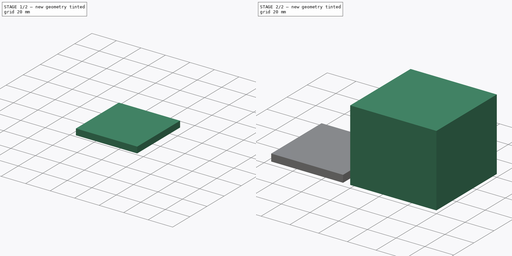
[diagram: build sequence overview — one tinted view per stage of 2, left to right]
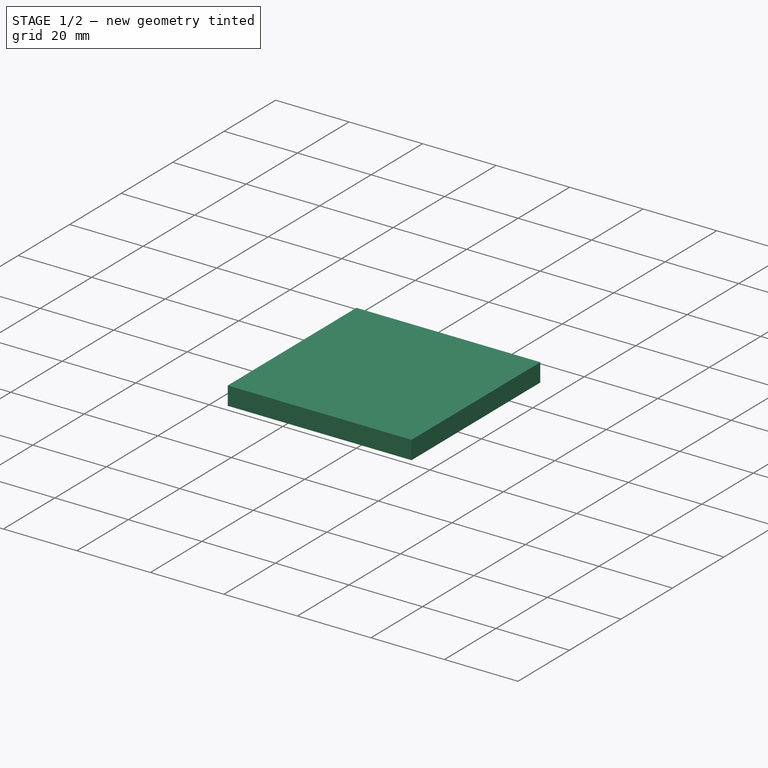
[diagram: stage 1 of 2 — iso view after this stage's code; geometry added in this stage tinted green]
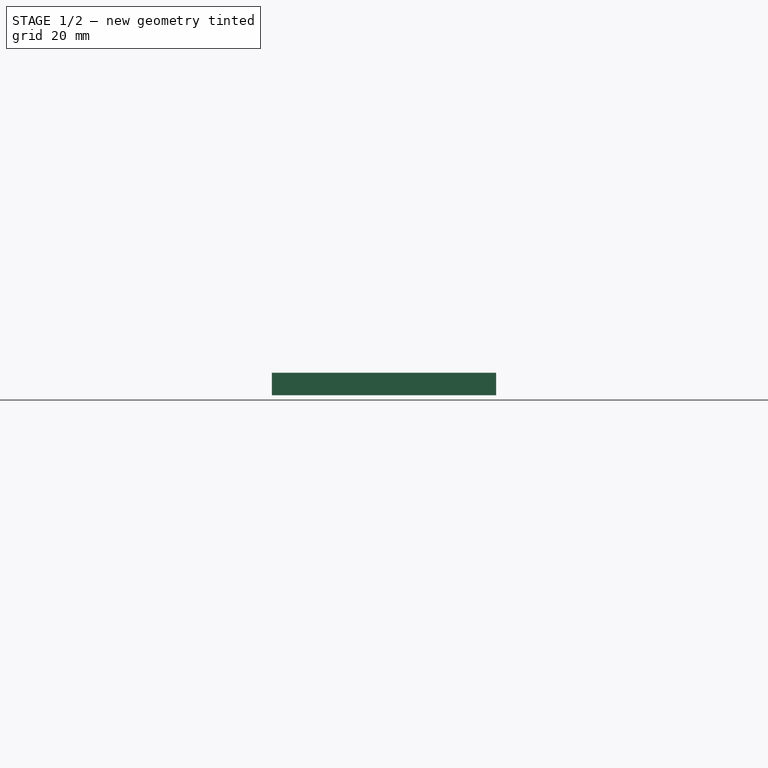
[diagram: stage 1 of 2 — front view after this stage's code; geometry added in this stage tinted green]
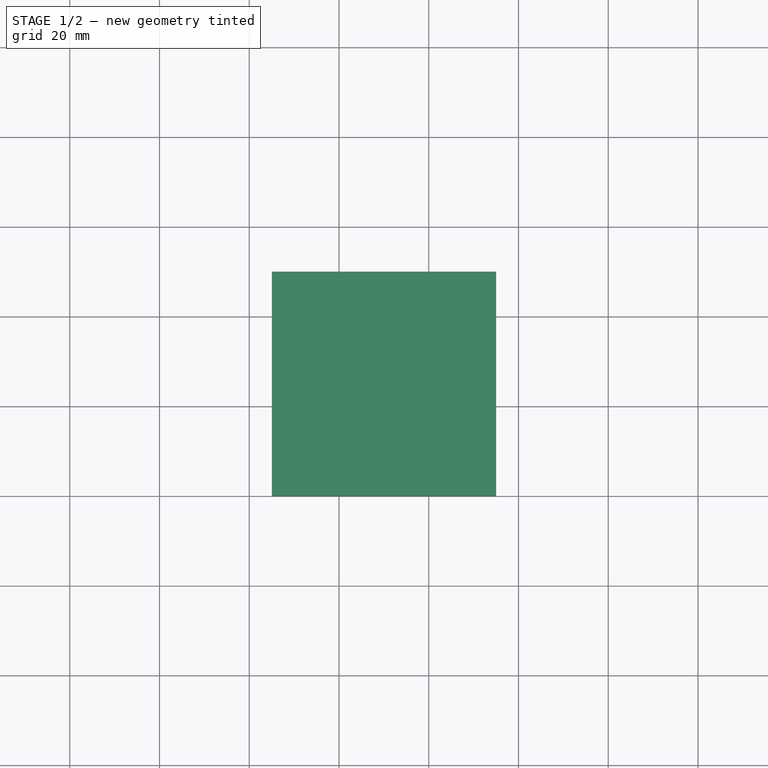
[diagram: stage 1 of 2 — top view after this stage's code; geometry added in this stage tinted green]
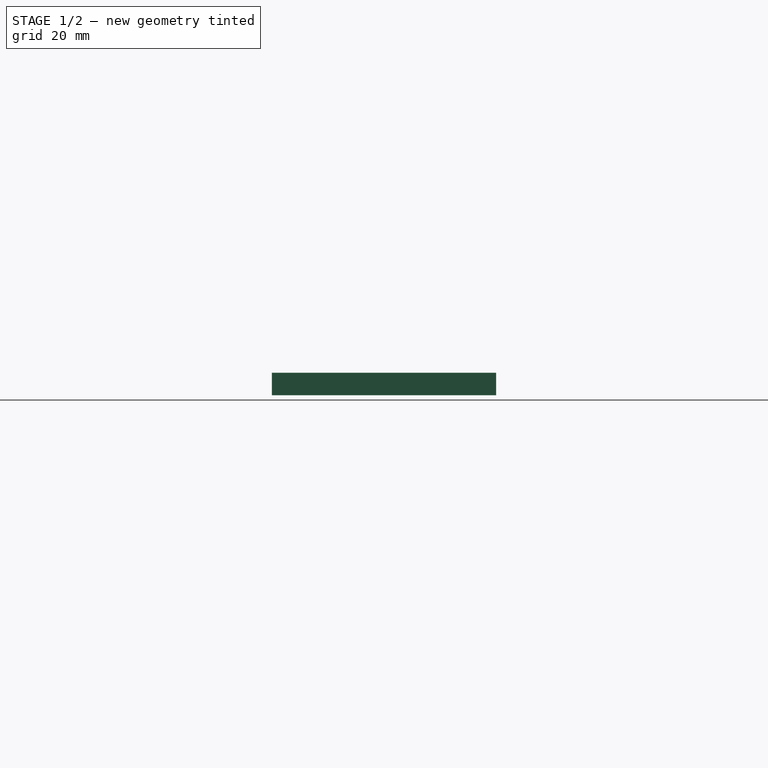
[diagram: stage 1 of 2 — right view after this stage's code; geometry added in this stage tinted green]
FCSTD DOCUMENT  (FreeCAD 0.18R16110 (Git))
Label: cad4
License: All rights reserved
LicenseURL: http://en.wikipedia.org/wiki/All_rights_reserved
objects: Sketcher::SketchObject×2, Part::Extrusion×2, Part::Box×1, Part::Cut×1, App::Part×1
note: 6 computed .brp shape members not serialized (recipe doc carries the construction recipe); baked Part::Feature solids carry a one-line shape summary decoded from their .brp

FEATURE [Sketcher::SketchObject] Sketch
  MapMode = 5
  Placement = pos=(0,0,45) rot=(0,0,1;0rad)
  sketch-geometry (27):
    g0: LineSegment StartX=5 StartY=55 StartZ=0 EndX=55 EndY=55 EndZ=0
    g1: LineSegment StartX=5 StartY=5 StartZ=0 EndX=55 EndY=5 EndZ=0
    g2: LineSegment StartX=5 StartY=55 StartZ=0 EndX=5 EndY=37.5 EndZ=0
    g3: LineSegment StartX=5 StartY=5 StartZ=0 EndX=5 EndY=22.5 EndZ=0
    g4: LineSegment StartX=5 StartY=22.5 StartZ=0 EndX=10 EndY=22.5 EndZ=0
    g5: LineSegment StartX=10 StartY=37.5 StartZ=0 EndX=5 EndY=37.5 EndZ=0
    g6: LineSegment StartX=55 StartY=55 StartZ=0 EndX=55 EndY=37.5 EndZ=0
    g7: LineSegment StartX=55 StartY=5 StartZ=0 EndX=55 EndY=22.5 EndZ=0
    g8: LineSegment StartX=55 StartY=37.5 StartZ=0 EndX=50 EndY=37.5 EndZ=0
    g9: LineSegment StartX=50 StartY=22.5 StartZ=0 EndX=55 EndY=22.5 EndZ=0
    g10: GeomPoint [constr] X=60 Y=0 Z=0
    g11: GeomPoint [constr] X=60 Y=60 Z=0
    g12: GeomPoint [constr] X=0 Y=60 Z=0
    g13: LineSegment StartX=50.001 StartY=37.5 StartZ=0 EndX=45 EndY=37.5 EndZ=0
    g14: LineSegment StartX=45 StartY=37.5 StartZ=0 EndX=45 EndY=32.5 EndZ=0
    g15: LineSegment StartX=45 StartY=32.5 StartZ=0 EndX=50 EndY=32.5 EndZ=0
    g16: LineSegment StartX=50 StartY=27.5 StartZ=0 EndX=45 EndY=27.5 EndZ=0
    g17: LineSegment StartX=45 StartY=27.5 StartZ=0 EndX=45 EndY=22.5 EndZ=0
    g18: LineSegment StartX=45 StartY=22.5 StartZ=0 EndX=50.0094 EndY=22.4998 EndZ=0
    g19: LineSegment StartX=50 StartY=32.5 StartZ=0 EndX=50 EndY=27.5 EndZ=0
    g20: LineSegment StartX=10 StartY=37.5 StartZ=0 EndX=15 EndY=37.5 EndZ=0
    g21: LineSegment StartX=15 StartY=37.5 StartZ=0 EndX=15 EndY=32.5 EndZ=0
    g22: LineSegment StartX=15 StartY=32.5 StartZ=0 EndX=10 EndY=32.5 EndZ=0
    g23: LineSegment StartX=10 StartY=32.4939 StartZ=0 EndX=10 EndY=27.5 EndZ=0
    g24: LineSegment StartX=10 StartY=27.5 StartZ=0 EndX=15 EndY=27.5 EndZ=0
    g25: LineSegment StartX=15 StartY=27.5 StartZ=0 EndX=15 EndY=22.5 EndZ=0
    g26: LineSegment StartX=15 StartY=22.5 StartZ=0 EndX=10 EndY=22.5 EndZ=0
  constraints (76):
    c: DistanceY(g2,g0) = 17.5
    c: DistanceY(g5,g0) = 17.5
    c: DistanceX(g5,g2) = -5
    c: DistanceX(g4,g3) = -5
    c: DistanceY(g3,g1) = -17.5
    c: DistanceY(g2,g1) = -50
    c: DistanceY(g3,g0) = 50
    c: DistanceX(g1,g1) = 50
    c: DistanceY(g-1,g1) = 5
    c: DistanceX(g-1,g3) = 5
    c: DistanceY(g-1,g7) = 5
    c: DistanceY(g1,g0) = 50
    c: DistanceY(g1,g6) = 50
    c: DistanceX(g6,g8) = -5
    c: DistanceX(g9,g7) = 5
    c: DistanceY(g7,g1) = -17.5
    c: DistanceY(g8,g0) = 17.5
    c: DistanceX(g0,g0) = 50
    c: DistanceX(g1,g7) = 50
    c: DistanceX(g-1,g1) = 5
    c: DistanceX(g-1,g0) = 5
    c: DistanceY(g1,g10) = -5
    c: DistanceX(g6,g11) = 5
    c: DistanceX(g8,g11) = 5
    c: DistanceX(g9,g11) = 10
    c: DistanceX(g9,g10) = 5
    c: DistanceX(g6,g11) = 5
    c: DistanceX(g8,g5) = -40
    c: DistanceX(g12,g2) = 5
    c: DistanceY(g12,g0) = -5
    c: Coincident(g13,g14)
    c: Coincident(g14,g15)
    c: DistanceY(g13,g15) = -5
    c: DistanceY(g13,g14) = -5
    c: DistanceY(g8,g14) = -5
    c: DistanceY(g15,g8) = 5
    c: DistanceX(g6,g14) = -10
    c: Coincident(g16,g17)
    c: Coincident(g17,g18)
    c: DistanceX(g16,g16) = 5
    c: DistanceY(g16,g17) = -5
    c: DistanceY(g16,g9) = -5
    c: DistanceX(g15,g14) = -5
    c: DistanceX(g19,g16) = -5
    c: DistanceY(g19,g15) = 5
    c: DistanceY(g16,g15) = 5
    c: DistanceY(g19,g16) = -5
    c: DistanceY(g19,g16) = -5
    c: DistanceX(g16,g19) = 5
    c: DistanceX(g17,g7) = 10
    c: DistanceY(g7,g16) = 5
    c: Coincident(g20,g21)
    c: Coincident(g21,g22)
    c: Coincident(g23,g24)
    c: Coincident(g24,g25)
    c: Coincident(g25,g26)
    c: DistanceX(g25,g4) = -5
    c: DistanceX(g24,g23) = -5
    c: DistanceX(g26,g3) = -5
    c: DistanceY(g4,g24) = 5
    c: DistanceY(g26,g24) = 5
    c: DistanceY(g3,g24) = 5
    c: DistanceX(g4,g25) = 10
    c: DistanceY(g23,g25) = -5
    c: DistanceY(g23,g4) = -5
    c: DistanceX(g24,g4) = -5
    c: DistanceY(g24,g22) = 5
    c: DistanceX(g22,g24) = 5
    c: DistanceX(g23,g21) = 5
    c: DistanceY(g23,g21) = 5
    c: DistanceX(g21,g23) = -5
    c: DistanceY(g21,g20) = 5
    c: DistanceX(g22,g20) = 5
    c: DistanceX(g20,g5) = -5
    c: DistanceX(g2,g5) = 0
    c: DistanceY(g14,g6) = 5
FEATURE [Part::Extrusion] Extrude
  Base = -> Sketch
  Dir = (0,0,1)
  DirMode = 2
  FaceMakerClass = Part::FaceMakerBullseye
  LengthFwd = 45
  LengthRev = 0
  Solid = false
  Symmetric = false
FEATURE [Part::Cut] Cut
  Base = -> Extrude
  Tool = -> Box
FEATURE [App::Part] Part
  Origin = -> Origin
FEATURE [Sketcher::SketchObject] Sketch001
  sketch-geometry (4):
    g0: LineSegment StartX=-4.96913 StartY=50 StartZ=0 EndX=-54.9691 EndY=50 EndZ=0
    g1: LineSegment StartX=-54.9691 StartY=50 StartZ=0 EndX=-54.9691 EndY=0 EndZ=0
    g2: LineSegment StartX=-54.9691 StartY=0 StartZ=0 EndX=-4.96913 EndY=0 EndZ=0
    g3: LineSegment StartX=-4.96913 StartY=0 StartZ=0 EndX=-4.96913 EndY=50 EndZ=0
  constraints (11):
    c: Coincident(g0,g1)
    c: Coincident(g1,g2)
    c: Coincident(g2,g3)
    c: Coincident(g3,g0)
    c: Horizontal(g0)
    c: Horizontal(g2)
    c: Vertical(g1)
    c: Vertical(g3)
    c: PointOnObject(g1,g-1)
    c: DistanceX(g0,g0) = 50
    c: DistanceY(g1,g0) = 50
FEATURE [Part::Extrusion] Extrude001
  Base = -> Sketch001
  Dir = (0,0,1)
  DirMode = 2
  FaceMakerClass = Part::FaceMakerBullseye
  LengthFwd = 5
  LengthRev = 0
  Solid = true
  Symmetric = false
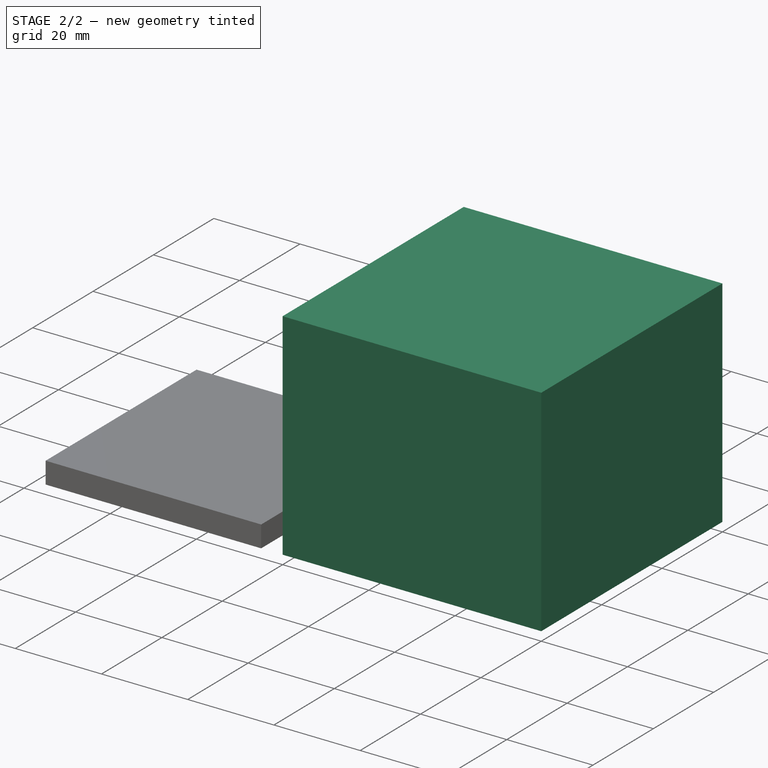
[diagram: stage 2 of 2 — iso view after this stage's code; geometry added in this stage tinted green]
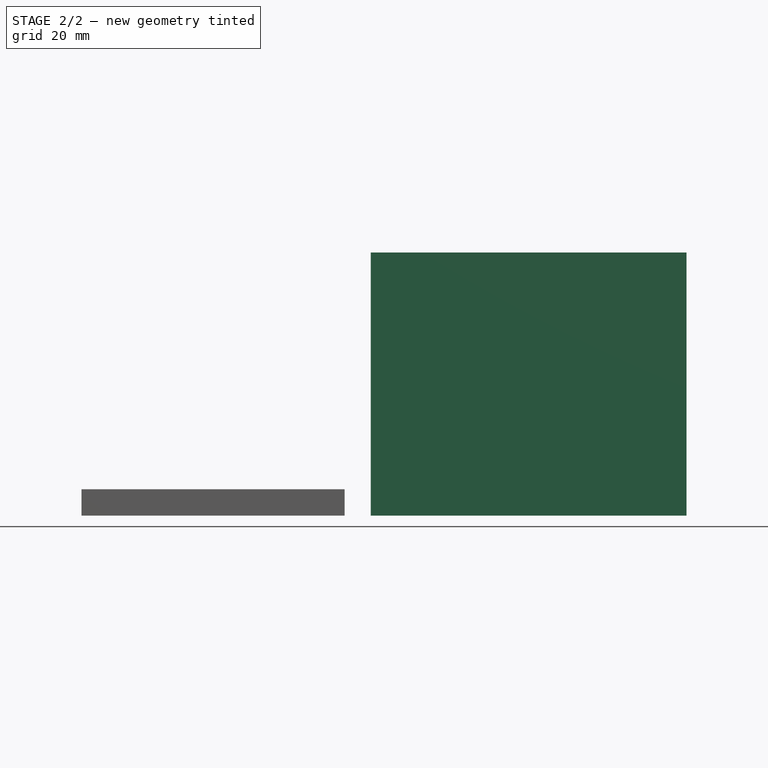
[diagram: stage 2 of 2 — front view after this stage's code; geometry added in this stage tinted green]
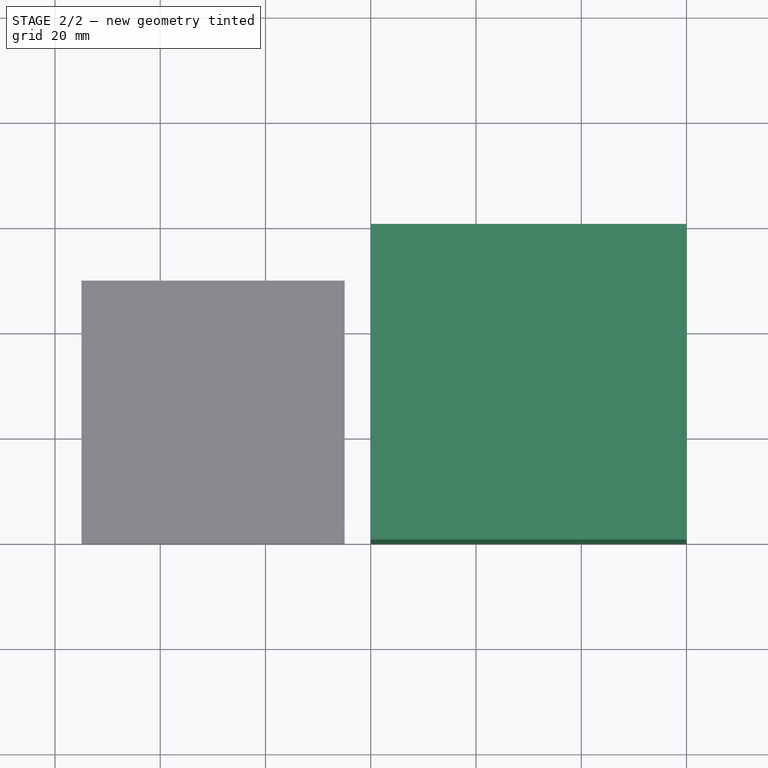
[diagram: stage 2 of 2 — top view after this stage's code; geometry added in this stage tinted green]
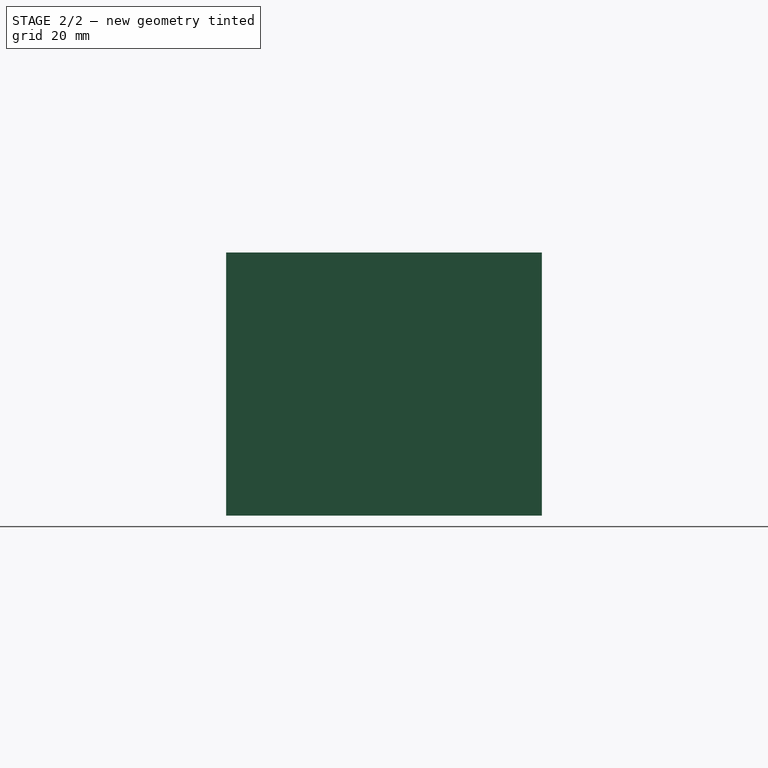
[diagram: stage 2 of 2 — right view after this stage's code; geometry added in this stage tinted green]
FEATURE [Part::Box] Box  label="Cubo"
  AttacherType = Attacher::AttachEngine3D
  Height = 50
  Length = 60
  Width = 60
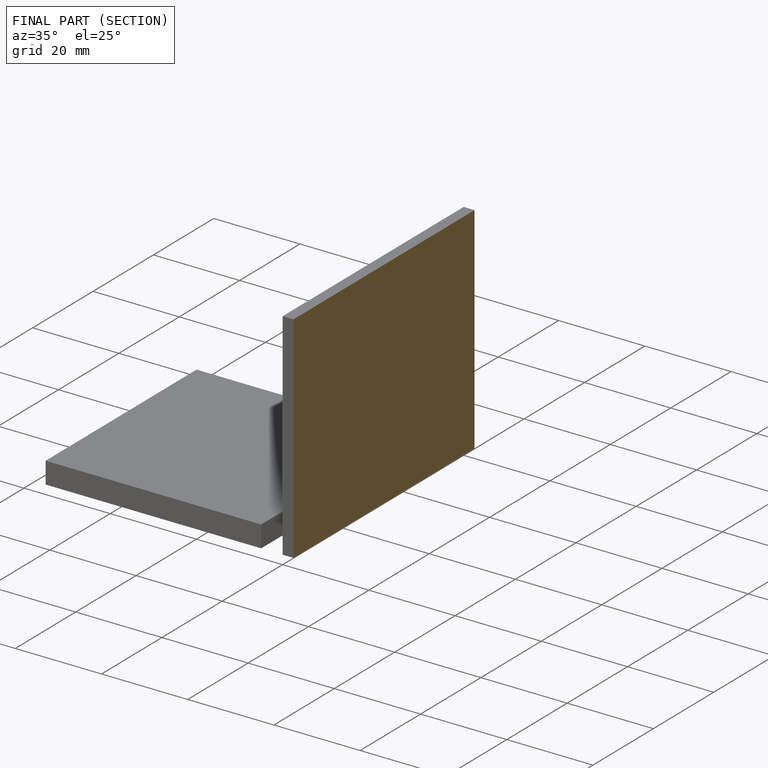
[diagram: finished part — half-section view (interior)]
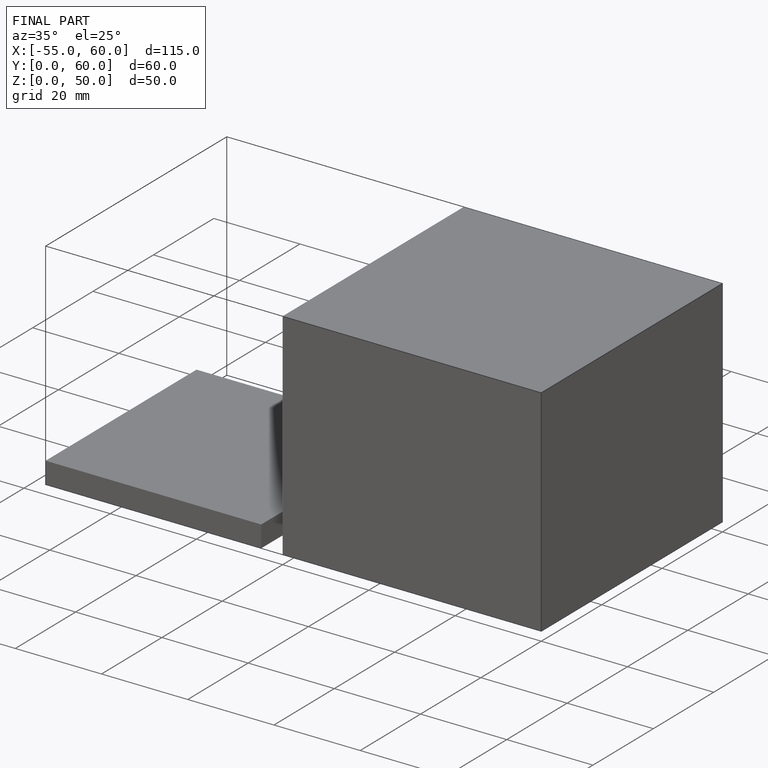
[diagram: finished part — iso view with bounding-box wireframe]
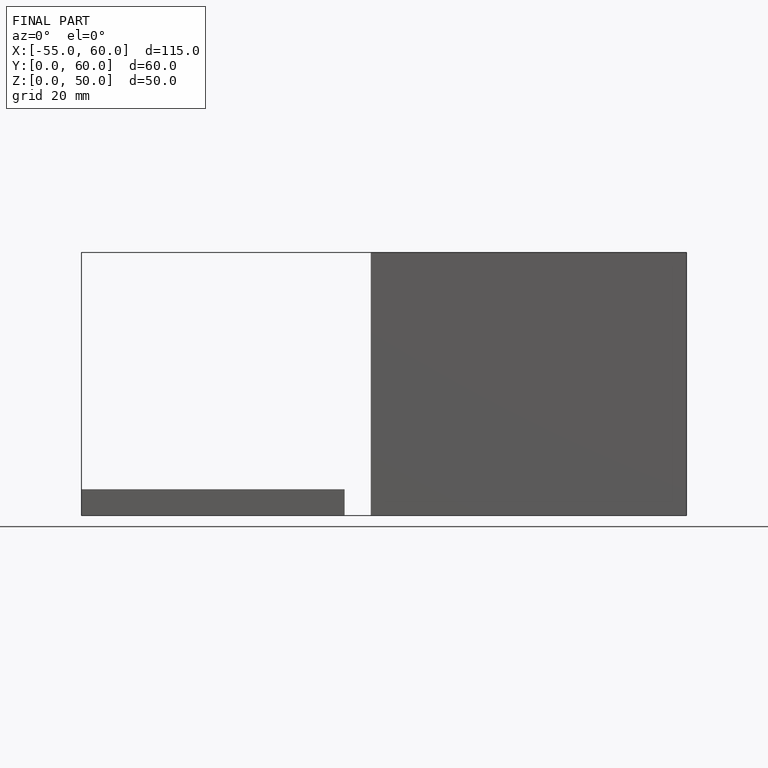
[diagram: finished part — front view with bounding-box wireframe]
